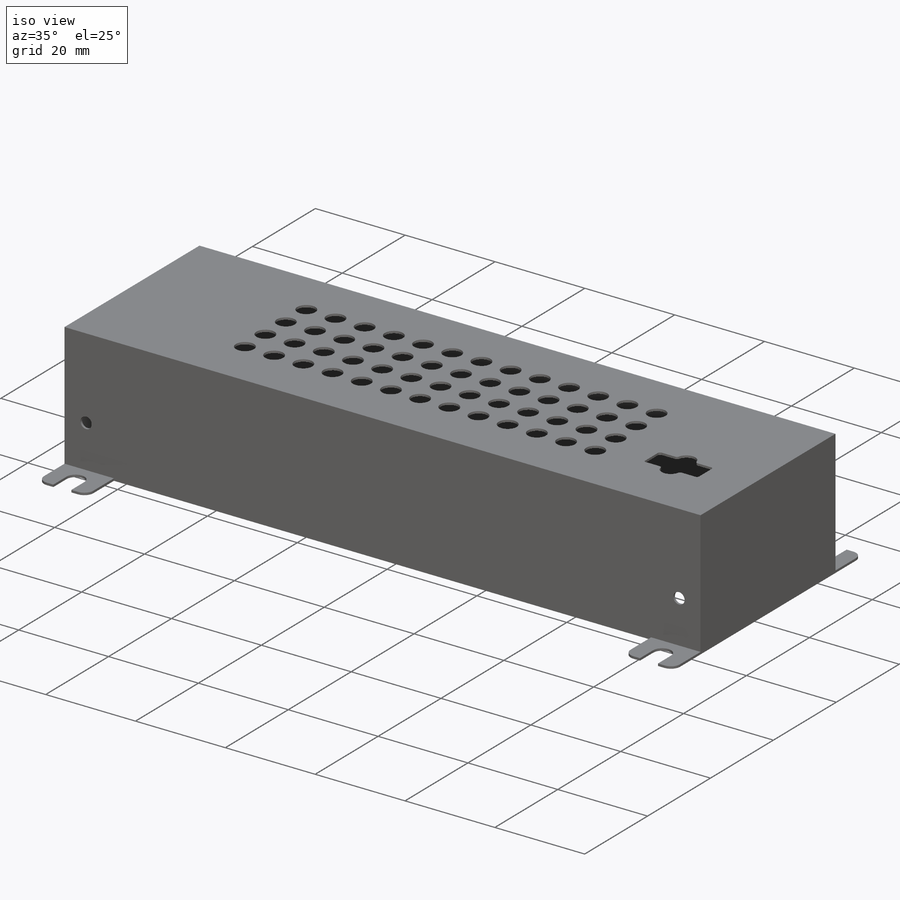
[diagram: iso view]
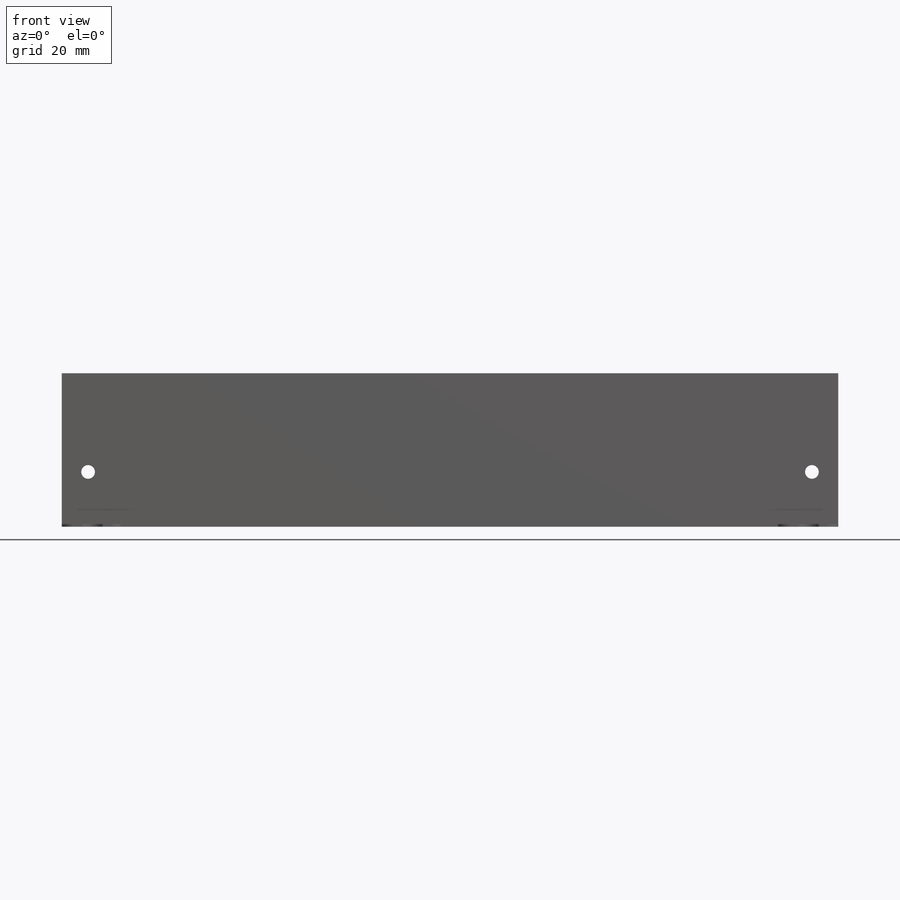
[diagram: front view]
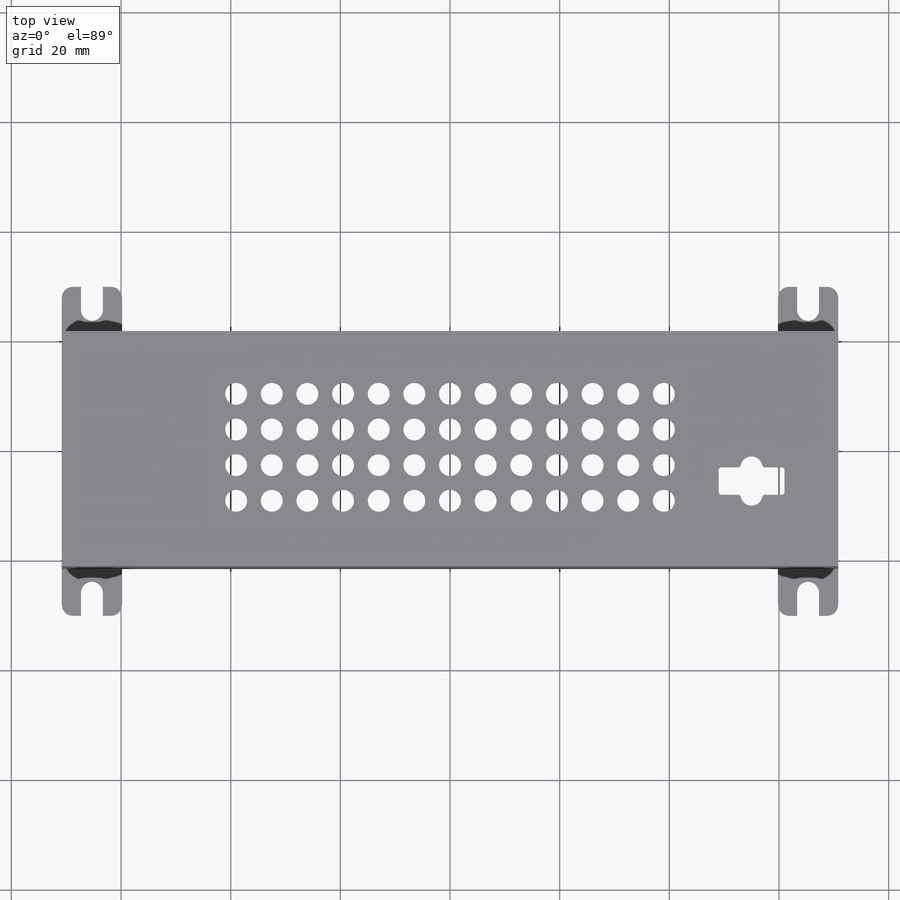
[diagram: top view]
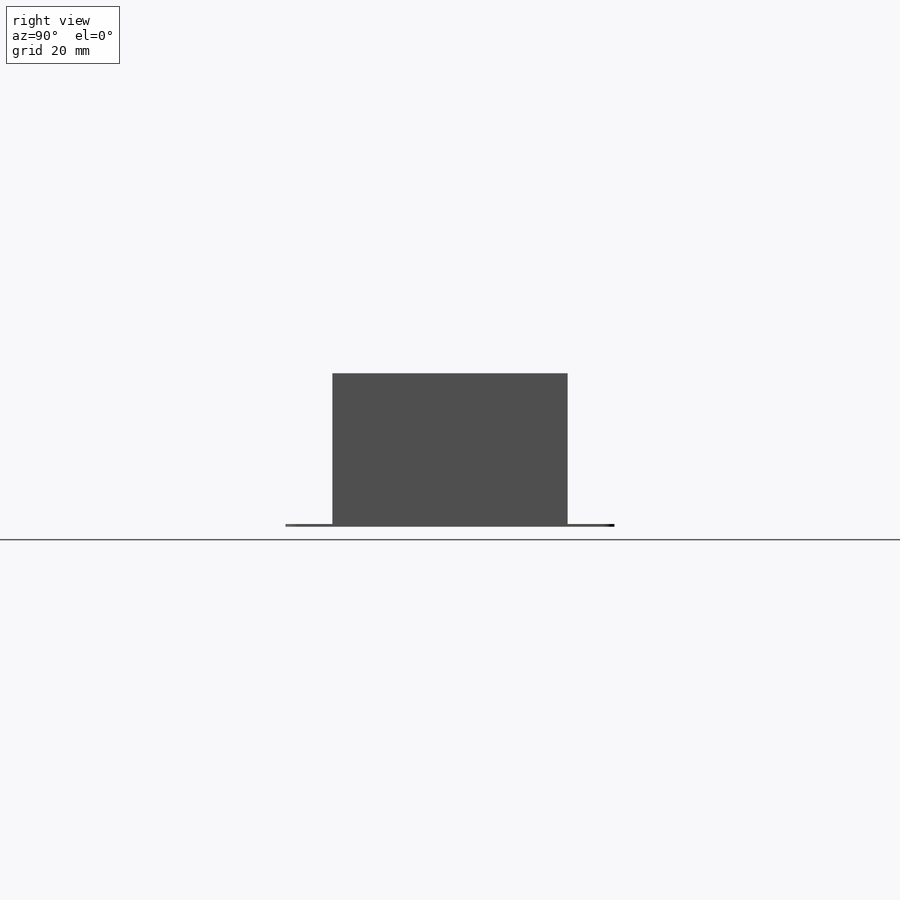
[diagram: right view]
SOLIDWORKS PART (.sldprt)
format: sldprt  version: not decoded by parser v0  size: 444,416 bytes
history: native  units: mm
features: sketch x9, plane x3, cut_extrude x3, extrude x2, hole x2, pattern_linear x2, thread x2, fillet x2, material x1, shell x1 (+10 scaffold rows collapsed)
feature tree (37):
  scaffold x10  (default folders/planes/origin — collapsed)
  material  "Lega 1060"
  plane  "Piano frontale"
  plane  "Piano superiore"
  plane  "Piano destro"
  sketch  "Schizzo1"  dims[c1.D1=~67.146566mm c1.D2=~208.770109mm c2.D1=141.6mm c2.D2=42.9mm]
  extrude  "Estrusione-Estrusione1"  Depth=28mm
  shell  "Svuota1"  Thickness=0.5mm
  hole  "Foro Ø4.0 (4)-1"  Diameter=4mm Depth=6mm
  sketch  "Schizzo3"  dims[D1=39.0mm D2=10.0mm]
  sketch  "Schizzo2"  dims[hole-wizard template sketch: 47 standard entries collapsed; hole parameters kept: c15.Hole Depth=6.0mm c15.D3=~14.816244mm c15.Drill Angle=118.0deg]
  pattern_linear  "Ripetizione a L1"  Count1=13 Count2=4 Spacing1=6.5mm Spacing2=6.5mm
  sketch  "Schizzo4"  dims[c1.D1=~5.034882mm c1.D2=~7.36754mm c2.D1=12.0mm c2.D2=5.0mm c2.D3=5.9mm c2.D4=55.0mm]
  cut_extrude  "Taglio-Estrusione1"  Depth=28mm
  sketch  "Schizzo6"  dims[D1=~2.89468mm]
  cut_extrude  "Taglio-Estrusione2"  Depth=28mm
  sketch  "Schizzo8"  dims[c1.D1=~5.097791mm c1.D2=~7.437816mm c2.D1=~4.627444mm c2.D2=~7.437816mm c3.D1=60.0mm c3.D2=11.0mm]
  extrude  "Estrusione-Estrusione2"  Depth=0.5mm
  sketch  "Schizzo9"  dims[c1.D1=~1.736693mm c1.D2=2.0mm c1.D3=2.0mm c2.D1=~4.500196mm c2.D2=~3.473387mm c3.D1=~3.542275mm c3.D2=~3.473387mm c4.D1=51.6mm c4.D3=6.2mm c4.D4=~0.852551mm]
  cut_extrude  "Taglio-Estrusione3"  Depth=10mm
  pattern_linear  "Ripetizione a L2"  Count1=2 Count2=1 Spacing1=130.6mm Spacing2=6.5mm
  hole  "Foro filettato M3x0.5-1"  [1 undecoded]
  sketch  "Schizzo11"  dims[D1=10.0mm D2=132.0mm]
  thread  "Filettatura del foro1"  Diameter=3mm  [1 undecoded]
  thread  "Filettatura del foro2"  Diameter=3mm  [1 undecoded]
  sketch  "Schizzo10"  dims[hole-wizard template sketch: 60 standard entries collapsed; hole parameters kept: c18.Thru Tap Drill Depth=~51.450025mm]
  fillet  "Raccordo2"  Radius=2mm
  fillet  "Raccordo3"  Radius=0.5mm
decode coverage: 22 of 23 modeling features carry decoded parameters
note: ~ marks probable driven/reference dimensions
note: 3 parameter values undecoded
note: suppression state not decoded; provenance and decode notes live in map.json
